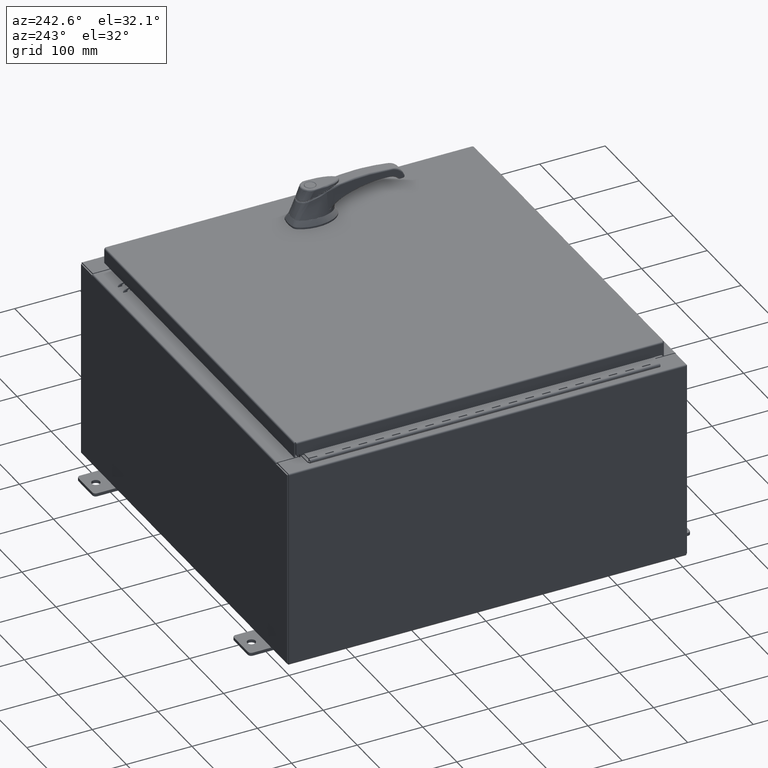
[diagram: clean part render]
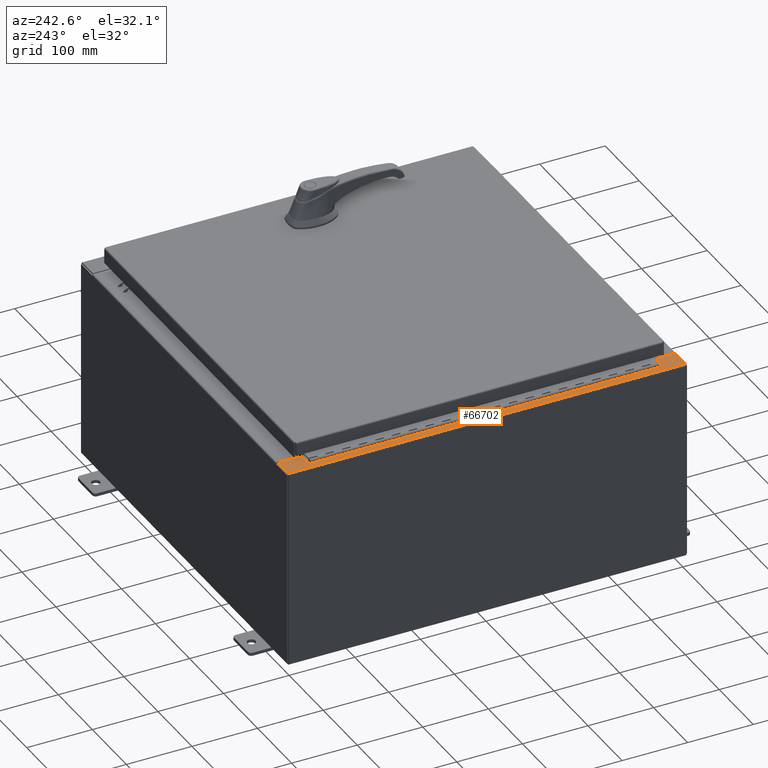
[diagram: same view with one face highlighted and labeled with its STEP entity id]
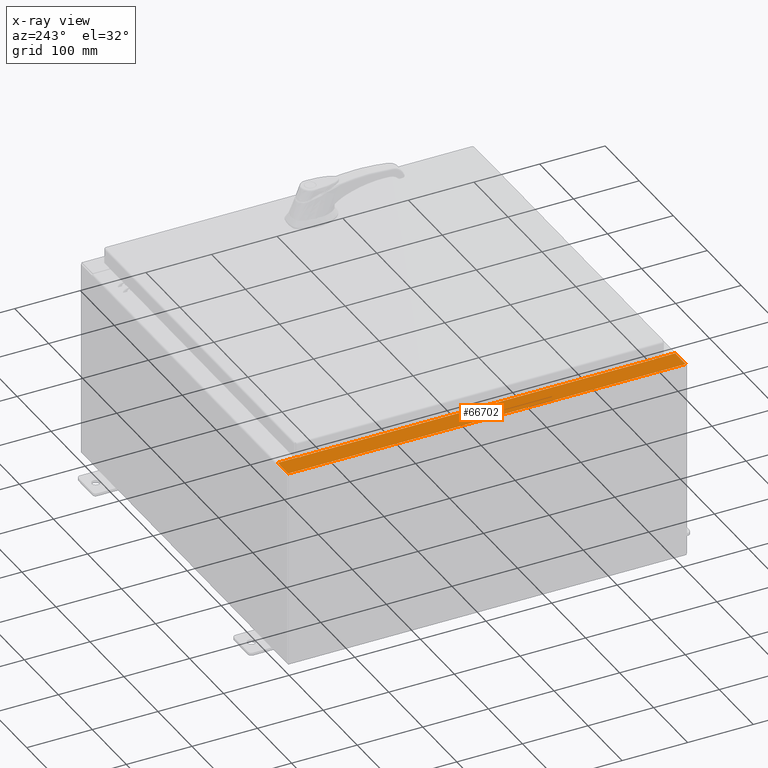
[diagram: x-ray of the same camera — body ghosted, the highlighted face saturated]
A machine part, auxiliary view. The second image highlights one B-rep face of the part: STEP entity #66702.
The next image is the same camera in x-ray: the body ghosted, the highlighted face saturated — about 0% of this face is hidden behind the body in this view.
In plain terms, the highlighted planar face has unit normal (0, 0, -1).
Its self-contained STEP definition (entity closure, byte-faithful):
#137 = LINE ( 'NONE', #52483, #109924 ) ;
#546 = CARTESIAN_POINT ( 'NONE',  ( -10.75005000000004600, -10.63109999999998800, 11.92530000000000900 ) ) ;
#1601 = ORIENTED_EDGE ( 'NONE', *, *, #82029, .T. ) ;
#2413 = DIRECTION ( 'NONE',  ( 7.132762385546384700E-015, 0.0000000000000000000, -1.000000000000000000 ) ) ;
#2419 = ORIENTED_EDGE ( 'NONE', *, *, #42790, .T. ) ;
#2858 = VECTOR ( 'NONE', #9010, 39.37007874015748100 ) ;
#2998 = VECTOR ( 'NONE', #36165, 39.37007874015748100 ) ;
#3394 = VERTEX_POINT ( 'NONE', #46910 ) ;
#3463 = AXIS2_PLACEMENT_3D ( 'NONE', #110202, #58409, #6461 ) ;
#5732 = DIRECTION ( 'NONE',  ( -1.000000000000000000, 0.0000000000000000000, -7.132762385546384700E-015 ) ) ;
#6461 = DIRECTION ( 'NONE',  ( 1.000000000000000000, 0.0000000000000000000, 0.0000000000000000000 ) ) ;
#6666 = ORIENTED_EDGE ( 'NONE', *, *, #47070, .T. ) ;
#8268 = ORIENTED_EDGE ( 'NONE', *, *, #19256, .F. ) ;
#9010 = DIRECTION ( 'NONE',  ( 1.000000000000000000, -0.0000000000000000000, 7.132762385546384700E-015 ) ) ;
#10429 = EDGE_CURVE ( 'NONE', #3394, #73287, #26144, .T. ) ;
#10666 = CARTESIAN_POINT ( 'NONE',  ( -10.69970000000004600, 10.63109999999999600, 11.92530000000000900 ) ) ;
#12220 = LINE ( 'NONE', #14514, #78611 ) ;
#12344 = EDGE_CURVE ( 'NONE', #73287, #91418, #101764, .T. ) ;
#14514 = CARTESIAN_POINT ( 'NONE',  ( -8.532114493236847900E-014, 11.92529999999999800, 11.92530000000008500 ) ) ;
#16855 = VECTOR ( 'NONE', #48473, 39.37007874015748100 ) ;
#18090 = VERTEX_POINT ( 'NONE', #33739 ) ;
#19256 = EDGE_CURVE ( 'NONE', #110349, #101864, #70003, .T. ) ;
#23288 = CIRCLE ( 'NONE', #3463, 0.01867499999999949400 ) ;
#24359 = EDGE_CURVE ( 'NONE', #95928, #18090, #49782, .T. ) ;
#25702 = FACE_OUTER_BOUND ( 'NONE', #107495, .T. ) ;
#26144 = LINE ( 'NONE', #61884, #2998 ) ;
#26744 = LINE ( 'NONE', #546, #95777 ) ;
#26760 = VECTOR ( 'NONE', #37487, 39.37007874015748100 ) ;
#28433 = AXIS2_PLACEMENT_3D ( 'NONE', #89261, #37446, #97924 ) ;
#28751 = CARTESIAN_POINT ( 'NONE',  ( -10.75005000000004600, 10.59374999999999800, 11.92530000000000900 ) ) ;
#33045 = VERTEX_POINT ( 'NONE', #76937 ) ;
#33739 = CARTESIAN_POINT ( 'NONE',  ( -10.71270000000004800, 10.59374999999999800, 11.92530000000000900 ) ) ;
#33828 = ORIENTED_EDGE ( 'NONE', *, *, #89614, .F. ) ;
#34830 = CARTESIAN_POINT ( 'NONE',  ( -8.532114493236847900E-014, -11.92530000000000000, 11.92530000000008500 ) ) ;
#36165 = DIRECTION ( 'NONE',  ( -1.000000000000000000, 0.0000000000000000000, 0.0000000000000000000 ) ) ;
#37285 = VECTOR ( 'NONE', #108665, 39.37007874015748100 ) ;
#37446 = DIRECTION ( 'NONE',  ( -7.132762385546384700E-015, -0.0000000000000000000, 1.000000000000000000 ) ) ;
#37487 = DIRECTION ( 'NONE',  ( 1.000000000000000000, 0.0000000000000000000, 0.0000000000000000000 ) ) ;
#39777 = ORIENTED_EDGE ( 'NONE', *, *, #75593, .F. ) ;
#40661 = ORIENTED_EDGE ( 'NONE', *, *, #24359, .F. ) ;
#42790 = EDGE_CURVE ( 'NONE', #76195, #33045, #62890, .T. ) ;
#43769 = DIRECTION ( 'NONE',  ( -0.0000000000000000000, -1.000000000000000000, -0.0000000000000000000 ) ) ;
#44476 = CARTESIAN_POINT ( 'NONE',  ( -10.75005000000004600, 10.59374999999999800, 11.92530000000000900 ) ) ;
#46910 = CARTESIAN_POINT ( 'NONE',  ( -10.71270000000004800, -10.59374999999998900, 11.92530000000000900 ) ) ;
#47070 = EDGE_CURVE ( 'NONE', #110349, #74769, #49003, .T. ) ;
#48121 = CARTESIAN_POINT ( 'NONE',  ( -10.69970000000004600, 10.63109999999999600, 11.92530000000000900 ) ) ;
#48473 = DIRECTION ( 'NONE',  ( 0.0000000000000000000, 1.000000000000000000, 0.0000000000000000000 ) ) ;
#49003 = LINE ( 'NONE', #34830, #2858 ) ;
#49782 = LINE ( 'NONE', #28751, #26760 ) ;
#52483 = CARTESIAN_POINT ( 'NONE',  ( -10.71270000000004800, 10.59374999999999300, 11.92530000000000900 ) ) ;
#54339 = PLANE ( 'NONE',  #104040 ) ;
#54519 = CARTESIAN_POINT ( 'NONE',  ( -11.91230000000004500, 11.92529999999999800, 11.92530000000000000 ) ) ;
#56148 = EDGE_CURVE ( 'NONE', #91418, #85179, #26744, .T. ) ;
#58070 = ORIENTED_EDGE ( 'NONE', *, *, #109989, .T. ) ;
#58353 = ORIENTED_EDGE ( 'NONE', *, *, #56148, .F. ) ;
#58409 = DIRECTION ( 'NONE',  ( -7.132762385546384700E-015, -0.0000000000000000000, 1.000000000000000000 ) ) ;
#60590 = CARTESIAN_POINT ( 'NONE',  ( -10.75005000000004600, -10.59374999999998900, 11.92530000000000900 ) ) ;
#61884 = CARTESIAN_POINT ( 'NONE',  ( -10.71270000000004800, -10.59374999999998900, 11.92530000000000900 ) ) ;
#62890 = LINE ( 'NONE', #74238, #16855 ) ;
#63077 = DIRECTION ( 'NONE',  ( -1.000000000000000000, 0.0000000000000000000, -7.132762385546384700E-015 ) ) ;
#63859 = ORIENTED_EDGE ( 'NONE', *, *, #12344, .F. ) ;
#64034 = CARTESIAN_POINT ( 'NONE',  ( -10.69970000000004600, -11.92530000000000000, 11.92530000000000900 ) ) ;
#64950 = VERTEX_POINT ( 'NONE', #79947 ) ;
#66702 = ADVANCED_FACE ( 'NONE', ( #25702 ), #54339, .F. ) ;
#67011 = CARTESIAN_POINT ( 'NONE',  ( -10.75005000000004600, -10.63109999999998800, 11.92530000000000900 ) ) ;
#70003 = LINE ( 'NONE', #95547, #72736 ) ;
#72736 = VECTOR ( 'NONE', #104243, 39.37007874015748100 ) ;
#73287 = VERTEX_POINT ( 'NONE', #60590 ) ;
#73538 = CARTESIAN_POINT ( 'NONE',  ( -10.69970000000004600, 0.0000000000000000000, 11.92530000000000900 ) ) ;
#74238 = CARTESIAN_POINT ( 'NONE',  ( -10.69970000000004600, 0.0000000000000000000, 11.92530000000000900 ) ) ;
#74769 = VERTEX_POINT ( 'NONE', #64034 ) ;
#75593 = EDGE_CURVE ( 'NONE', #18090, #3394, #137, .T. ) ;
#76195 = VERTEX_POINT ( 'NONE', #10666 ) ;
#76937 = CARTESIAN_POINT ( 'NONE',  ( -10.69970000000004600, 11.92529999999999800, 11.92530000000000900 ) ) ;
#78611 = VECTOR ( 'NONE', #5732, 39.37007874015748100 ) ;
#78641 = DIRECTION ( 'NONE',  ( 1.000000000000000000, 0.0000000000000000000, 0.0000000000000000000 ) ) ;
#79947 = CARTESIAN_POINT ( 'NONE',  ( -10.75005000000004600, 10.63109999999999600, 11.92530000000000900 ) ) ;
#80136 = CARTESIAN_POINT ( 'NONE',  ( -8.532114493236847900E-014, 0.0000000000000000000, 11.92530000000008500 ) ) ;
#82029 = EDGE_CURVE ( 'NONE', #74769, #85179, #109462, .T. ) ;
#82144 = ORIENTED_EDGE ( 'NONE', *, *, #85503, .F. ) ;
#82630 = DIRECTION ( 'NONE',  ( 0.0000000000000000000, 1.000000000000000000, 0.0000000000000000000 ) ) ;
#85179 = VERTEX_POINT ( 'NONE', #104076 ) ;
#85503 = EDGE_CURVE ( 'NONE', #76195, #64950, #106286, .T. ) ;
#89261 = CARTESIAN_POINT ( 'NONE',  ( -10.75005000000004600, -10.61242499999998900, 11.92530000000000900 ) ) ;
#89528 = ORIENTED_EDGE ( 'NONE', *, *, #10429, .F. ) ;
#89614 = EDGE_CURVE ( 'NONE', #64950, #95928, #23288, .T. ) ;
#91418 = VERTEX_POINT ( 'NONE', #67011 ) ;
#91878 = VECTOR ( 'NONE', #82630, 39.37007874015748100 ) ;
#95547 = CARTESIAN_POINT ( 'NONE',  ( -11.91230000000004500, 11.92529999999999800, 11.92530000000000000 ) ) ;
#95777 = VECTOR ( 'NONE', #78641, 39.37007874015748100 ) ;
#95928 = VERTEX_POINT ( 'NONE', #44476 ) ;
#97924 = DIRECTION ( 'NONE',  ( 1.000000000000000000, 0.0000000000000000000, 0.0000000000000000000 ) ) ;
#101764 = CIRCLE ( 'NONE', #28433, 0.01867499999999949400 ) ;
#101864 = VERTEX_POINT ( 'NONE', #54519 ) ;
#101954 = CARTESIAN_POINT ( 'NONE',  ( -11.91230000000004500, -11.92530000000000000, 11.92530000000000000 ) ) ;
#104040 = AXIS2_PLACEMENT_3D ( 'NONE', #80136, #2413, #63077 ) ;
#104076 = CARTESIAN_POINT ( 'NONE',  ( -10.69970000000004600, -10.63109999999999100, 11.92530000000000900 ) ) ;
#104243 = DIRECTION ( 'NONE',  ( -0.0000000000000000000, 1.000000000000000000, -0.0000000000000000000 ) ) ;
#106286 = LINE ( 'NONE', #48121, #37285 ) ;
#107495 = EDGE_LOOP ( 'NONE', ( #82144, #2419, #58070, #8268, #6666, #1601, #58353, #63859, #89528, #39777, #40661, #33828 ) ) ;
#108665 = DIRECTION ( 'NONE',  ( -1.000000000000000000, 0.0000000000000000000, 0.0000000000000000000 ) ) ;
#109462 = LINE ( 'NONE', #73538, #91878 ) ;
#109924 = VECTOR ( 'NONE', #43769, 39.37007874015748100 ) ;
#109989 = EDGE_CURVE ( 'NONE', #33045, #101864, #12220, .T. ) ;
#110202 = CARTESIAN_POINT ( 'NONE',  ( -10.75005000000004600, 10.61242499999999800, 11.92530000000000900 ) ) ;
#110349 = VERTEX_POINT ( 'NONE', #101954 ) ;